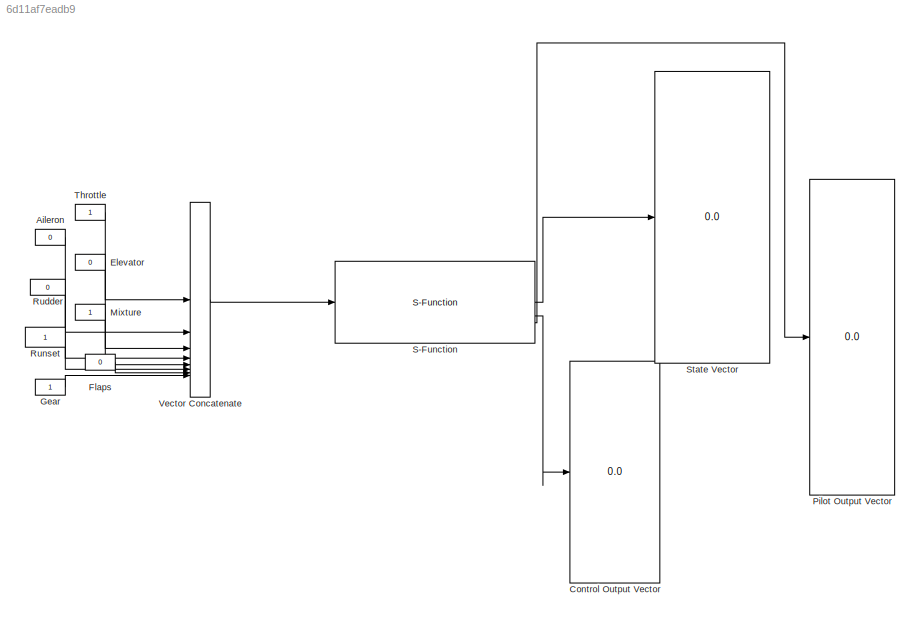
MODEL slx_6d11af7eadb9
KIND model
CONFIG AbsTol = auto
CONFIG EnableMultiTasking = off
CONFIG FixedStep = auto
CONFIG MaxStep = auto
CONFIG MinStep = auto
CONFIG RelTol = 1e-3
CONFIG SampleTimeConstraint = Unconstrained
CONFIG SolverName = VariableStepAuto
CONFIG StartTime = 0.0
CONFIG StopTime = 30.0
BLOCK [Constant] Aileron
  Value = 0
BLOCK [Display] Control Output Vector
  Decimation = 1
BLOCK [Constant] Elevator
  Value = 0
BLOCK [Constant] Flaps
  Value = 0
BLOCK [Constant] Gear
BLOCK [Constant] Mixture
BLOCK [Display] Pilot Output Vector
  Decimation = 1
BLOCK [Constant] Rudder
  Value = 0
BLOCK [Constant] Runset
  NameLocation = left
BLOCK [S-Function] S-Function
  EnableBusSupport = off
  FunctionName = JSBSim_SFunction
  Parameters = '737', 0.0083333, 1, 'scripts/script_737_cruise_steady_turn_linearize', 'cruise_init', 'io/ex737cruise_io'
  SFcnIsStateOwnerBlock = off
  SFunctionDeploymentMode = off
BLOCK [Display] State Vector
  Decimation = 1
BLOCK [Constant] Throttle
BLOCK [Concatenate] Vector Concatenate
  NumInputs = 8
LINE Aileron:1 -> Vector Concatenate:2
LINE Elevator:1 -> Vector Concatenate:3
LINE Flaps:1 -> Vector Concatenate:7
LINE Gear:1 -> Vector Concatenate:8
LINE Mixture:1 -> Vector Concatenate:5
LINE Rudder:1 -> Vector Concatenate:4
LINE Runset:1 -> Vector Concatenate:6
LINE S-Function:1 -> State Vector:1
LINE S-Function:2 -> Control Output Vector:1
LINE S-Function:3 -> Pilot Output Vector:1
LINE Throttle:1 -> Vector Concatenate:1
LINE Vector Concatenate:1 -> S-Function:1
